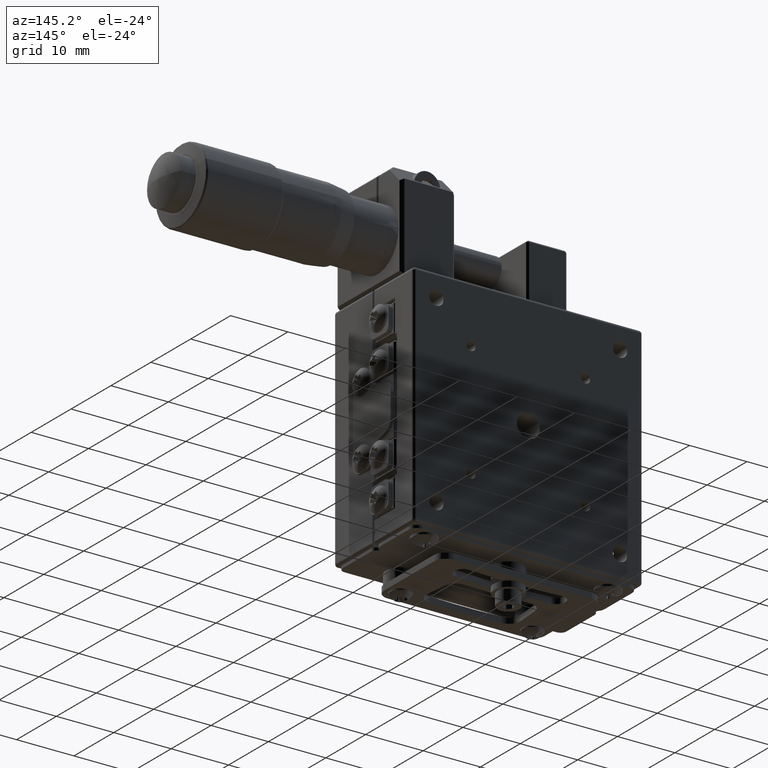
[diagram: clean part render]
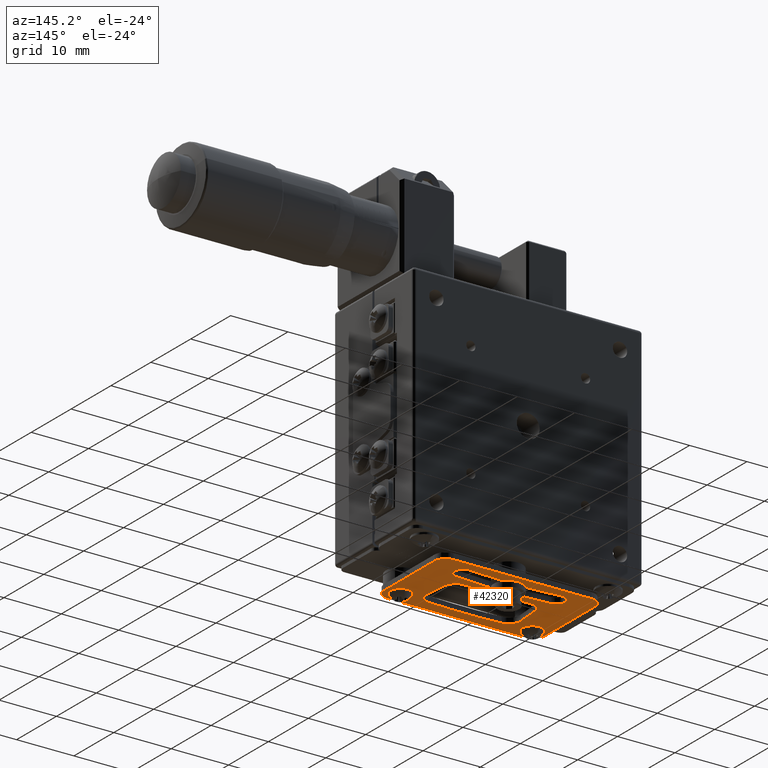
[diagram: same view with one face highlighted and labeled with its STEP entity id]
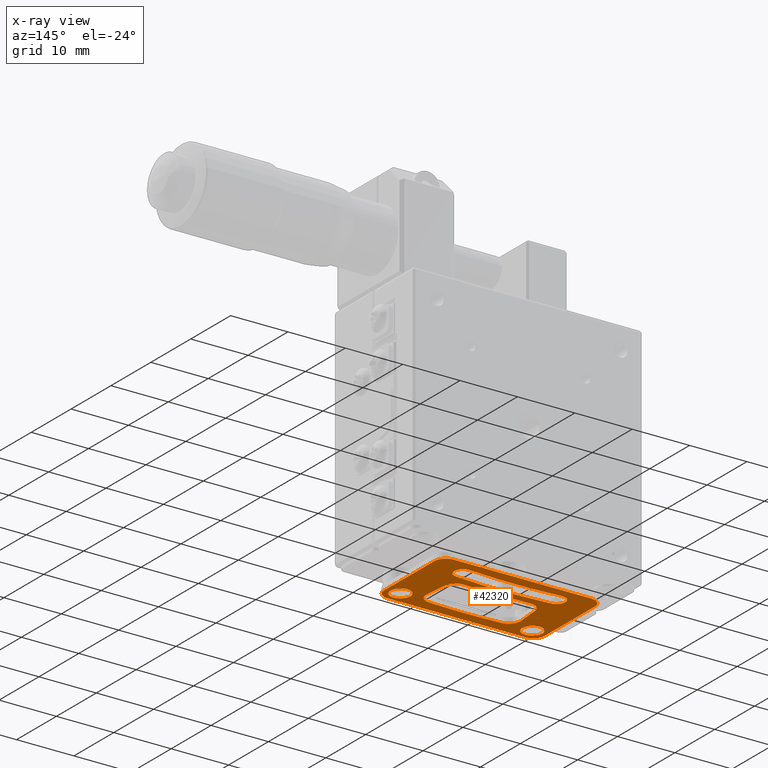
[diagram: x-ray of the same camera — body ghosted, the highlighted face saturated]
A machine part, auxiliary view. The second image highlights one B-rep face of the part: STEP entity #42320.
The next image is the same camera in x-ray: the body ghosted, the highlighted face saturated — about 0% of this face is hidden behind the body in this view.
In plain terms, the highlighted planar face has unit normal (0, 0, -1).
Its self-contained STEP definition (entity closure, byte-faithful):
#257 = VERTEX_POINT ( 'NONE', #2765 ) ;
#264 = CARTESIAN_POINT ( 'NONE',  ( -12.75129990782597922, 6.082277912659169949, -23.50000000000000000 ) ) ;
#445 = CIRCLE ( 'NONE', #35390, 1.750000000000001554 ) ;
#469 = VECTOR ( 'NONE', #14109, 1000.000000000000000 ) ;
#511 = AXIS2_PLACEMENT_3D ( 'NONE', #7976, #3271, #29835 ) ;
#567 = EDGE_CURVE ( 'NONE', #38272, #35162, #10522, .T. ) ;
#590 = EDGE_CURVE ( 'NONE', #34601, #27998, #39010, .T. ) ;
#622 = CIRCLE ( 'NONE', #3009, 2.000000000000000000 ) ;
#766 = ORIENTED_EDGE ( 'NONE', *, *, #21086, .F. ) ;
#908 = DIRECTION ( 'NONE',  ( 0.000000000000000000, 0.000000000000000000, 1.000000000000000000 ) ) ;
#1371 = CIRCLE ( 'NONE', #6952, 2.000000000000000000 ) ;
#1542 = DIRECTION ( 'NONE',  ( -1.648092493246315104E-30, 1.965541369730930102E-30, -1.000000000000000000 ) ) ;
#2049 = CIRCLE ( 'NONE', #43293, 1.750000000000001554 ) ;
#2614 = CARTESIAN_POINT ( 'NONE',  ( -15.10441094360695047, 9.290954773869358974, -23.50000000000000000 ) ) ;
#2765 = CARTESIAN_POINT ( 'NONE',  ( 8.895589056393079730, -7.309045226130649553, -23.50000000000000000 ) ) ;
#3009 = AXIS2_PLACEMENT_3D ( 'NONE', #16290, #4116, #19279 ) ;
#3240 = CARTESIAN_POINT ( 'NONE',  ( -3.104410943606929596, 90.69095477386940729, -23.50000000000000000 ) ) ;
#3271 = DIRECTION ( 'NONE',  ( 0.000000000000000000, 0.000000000000000000, 1.000000000000000000 ) ) ;
#3462 = CARTESIAN_POINT ( 'NONE',  ( -15.10441094360695047, -5.309045226130649553, -23.50000000000000000 ) ) ;
#3878 = EDGE_CURVE ( 'NONE', #37257, #40871, #23510, .T. ) ;
#3894 = EDGE_LOOP ( 'NONE', ( #8462, #16929, #42302, #17318, #41115, #19037, #31788, #42675, #46738 ) ) ;
#3938 = EDGE_CURVE ( 'NONE', #25240, #10435, #27495, .T. ) ;
#4116 = DIRECTION ( 'NONE',  ( 0.000000000000000000, 0.000000000000000000, 1.000000000000000000 ) ) ;
#4225 = ORIENTED_EDGE ( 'NONE', *, *, #30818, .T. ) ;
#4283 = LINE ( 'NONE', #23400, #43187 ) ;
#4367 = DIRECTION ( 'NONE',  ( 0.000000000000000000, 0.000000000000000000, -1.000000000000000000 ) ) ;
#4453 = ORIENTED_EDGE ( 'NONE', *, *, #19870, .F. ) ;
#4691 = DIRECTION ( 'NONE',  ( 1.000000000000000000, 0.000000000000000000, 0.000000000000000000 ) ) ;
#4694 = CARTESIAN_POINT ( 'NONE',  ( 5.186246649392450614, 4.589183615108390235, -23.50000000000000000 ) ) ;
#4833 = DIRECTION ( 'NONE',  ( 1.000000000000000000, 0.000000000000000000, 0.000000000000000000 ) ) ;
#4981 = CARTESIAN_POINT ( 'NONE',  ( -15.10441094360695047, 9.290954773869358974, -23.50000000000000000 ) ) ;
#5511 = CIRCLE ( 'NONE', #11850, 1.750000000000000444 ) ;
#5530 = CARTESIAN_POINT ( 'NONE',  ( 4.898709391831780557, 7.575372210209920354, -23.50000000000000000 ) ) ;
#6265 = EDGE_CURVE ( 'NONE', #40871, #15358, #41982, .T. ) ;
#6425 = VERTEX_POINT ( 'NONE', #32288 ) ;
#6428 = CARTESIAN_POINT ( 'NONE',  ( -10.94649075744341893, 1.055572339289323924, -23.50000000000000000 ) ) ;
#6671 = DIRECTION ( 'NONE',  ( 0.000000000000000000, 0.000000000000000000, 1.000000000000000000 ) ) ;
#6877 = AXIS2_PLACEMENT_3D ( 'NONE', #36052, #13705, #20901 ) ;
#6952 = AXIS2_PLACEMENT_3D ( 'NONE', #20044, #908, #46112 ) ;
#6977 = CARTESIAN_POINT ( 'NONE',  ( -11.25129990782597922, 6.082277912659169949, -23.50000000000000000 ) ) ;
#7637 = CARTESIAN_POINT ( 'NONE',  ( 10.89558905639307973, 7.290954773869350092, -23.50000000000000000 ) ) ;
#7641 = VERTEX_POINT ( 'NONE', #29544 ) ;
#7976 = CARTESIAN_POINT ( 'NONE',  ( -3.104410943606929596, 90.69095477386940729, -23.50000000000000000 ) ) ;
#8139 = VECTOR ( 'NONE', #42979, 1000.000000000000000 ) ;
#8203 = CARTESIAN_POINT ( 'NONE',  ( 4.737668870229560625, 1.055572339289323924, -23.50000000000000000 ) ) ;
#8366 = DIRECTION ( 'NONE',  ( 0.000000000000000000, -1.000000000000000000, 0.000000000000000000 ) ) ;
#8462 = ORIENTED_EDGE ( 'NONE', *, *, #32282, .T. ) ;
#8476 = DIRECTION ( 'NONE',  ( 0.000000000000000000, 0.000000000000000000, -1.000000000000000000 ) ) ;
#8715 = CARTESIAN_POINT ( 'NONE',  ( -3.104410943606929596, 90.69095477386940729, -23.50000000000000000 ) ) ;
#9081 = CIRCLE ( 'NONE', #47156, 1.499999999999999556 ) ;
#9175 = ORIENTED_EDGE ( 'NONE', *, *, #25261, .F. ) ;
#9292 = VERTEX_POINT ( 'NONE', #264 ) ;
#9331 = CARTESIAN_POINT ( 'NONE',  ( -9.434687540724301158, -5.100107430304968936, -23.50000000000000000 ) ) ;
#10435 = VERTEX_POINT ( 'NONE', #21007 ) ;
#10521 = DIRECTION ( 'NONE',  ( -0.08715574274765813811, -0.9961946980917455452, 0.000000000000000000 ) ) ;
#10522 = CIRCLE ( 'NONE', #39878, 86.50000000000000000 ) ;
#10622 = LINE ( 'NONE', #22511, #469 ) ;
#11191 = VERTEX_POINT ( 'NONE', #6428 ) ;
#11464 = CARTESIAN_POINT ( 'NONE',  ( 5.086374287253989657, -2.930148815555989827, -23.50000000000000000 ) ) ;
#11850 = AXIS2_PLACEMENT_3D ( 'NONE', #16936, #32321, #20652 ) ;
#12099 = FACE_OUTER_BOUND ( 'NONE', #34866, .T. ) ;
#12137 = ORIENTED_EDGE ( 'NONE', *, *, #43408, .F. ) ;
#12291 = DIRECTION ( 'NONE',  ( 0.000000000000000000, 0.000000000000000000, 1.000000000000000000 ) ) ;
#13229 = ORIENTED_EDGE ( 'NONE', *, *, #42219, .F. ) ;
#13294 = CARTESIAN_POINT ( 'NONE',  ( 3.225865653510445075, -5.100107430304968936, -23.50000000000000000 ) ) ;
#13574 = VECTOR ( 'NONE', #10521, 1000.000000000000114 ) ;
#13705 = DIRECTION ( 'NONE',  ( 0.000000000000000000, 0.000000000000000000, 1.000000000000000000 ) ) ;
#13795 = CARTESIAN_POINT ( 'NONE',  ( -11.25129990782597922, 6.082277912659169949, -23.50000000000000000 ) ) ;
#14109 = DIRECTION ( 'NONE',  ( 2.753529326947314899E-16, 1.000000000000000000, 0.000000000000000000 ) ) ;
#14337 = AXIS2_PLACEMENT_3D ( 'NONE', #3462, #31262, #4691 ) ;
#14617 = EDGE_CURVE ( 'NONE', #43396, #39469, #445, .T. ) ;
#14781 = EDGE_LOOP ( 'NONE', ( #16804, #9175 ) ) ;
#14889 = CARTESIAN_POINT ( 'NONE',  ( -17.10441094360695047, 7.290954773869350092, -23.50000000000000000 ) ) ;
#15105 = AXIS2_PLACEMENT_3D ( 'NONE', #13795, #33388, #32900 ) ;
#15182 = CARTESIAN_POINT ( 'NONE',  ( 4.565294418186979897, 3.025821341795745134, -23.50000000000000000 ) ) ;
#15323 = FACE_BOUND ( 'NONE', #15832, .T. ) ;
#15358 = VERTEX_POINT ( 'NONE', #8203 ) ;
#15816 = CARTESIAN_POINT ( 'NONE',  ( 7.054610742970379711, -5.933446027860200367, -23.50000000000000000 ) ) ;
#15832 = EDGE_LOOP ( 'NONE', ( #20007, #30350, #31202, #4225, #21781 ) ) ;
#16060 = CARTESIAN_POINT ( 'NONE',  ( -3.104410943606929596, 90.69095477386940729, -23.50000000000000000 ) ) ;
#16065 = CARTESIAN_POINT ( 'NONE',  ( 8.895589056393069072, 7.290954773869350092, -23.50000000000000000 ) ) ;
#16290 = CARTESIAN_POINT ( 'NONE',  ( -9.302806778284359979, -3.104460301051310100, -23.50000000000000000 ) ) ;
#16804 = ORIENTED_EDGE ( 'NONE', *, *, #29837, .F. ) ;
#16929 = ORIENTED_EDGE ( 'NONE', *, *, #47253, .T. ) ;
#16936 = CARTESIAN_POINT ( 'NONE',  ( 8.395589056393070848, -4.809045226130649553, -23.50000000000000000 ) ) ;
#17167 = DIRECTION ( 'NONE',  ( -1.000000000000000000, -8.673617379884035472E-16, 0.000000000000000000 ) ) ;
#17301 = LINE ( 'NONE', #32442, #13574 ) ;
#17318 = ORIENTED_EDGE ( 'NONE', *, *, #35318, .T. ) ;
#17418 = CARTESIAN_POINT ( 'NONE',  ( -11.29519617446783997, -2.930148815555989827, -23.50000000000000000 ) ) ;
#17723 = CARTESIAN_POINT ( 'NONE',  ( 8.895589056393069072, 9.290954773869358974, -23.50000000000000000 ) ) ;
#17871 = DIRECTION ( 'NONE',  ( -1.000000000000000000, 0.000000000000000000, 0.000000000000000000 ) ) ;
#17892 = CARTESIAN_POINT ( 'NONE',  ( 2.745279474046065094, 0.8812608537940029851, -23.50000000000000000 ) ) ;
#18967 = CARTESIAN_POINT ( 'NONE',  ( -12.85441094360692027, -4.809045226130649553, -23.50000000000000000 ) ) ;
#19037 = ORIENTED_EDGE ( 'NONE', *, *, #27042, .T. ) ;
#19279 = DIRECTION ( 'NONE',  ( -1.000000000000000000, 0.000000000000000000, 0.000000000000000000 ) ) ;
#19290 = ORIENTED_EDGE ( 'NONE', *, *, #35981, .F. ) ;
#19870 = EDGE_CURVE ( 'NONE', #42807, #6425, #22341, .T. ) ;
#19922 = CIRCLE ( 'NONE', #26258, 2.000000000000000000 ) ;
#20007 = ORIENTED_EDGE ( 'NONE', *, *, #567, .T. ) ;
#20044 = CARTESIAN_POINT ( 'NONE',  ( 8.895589056393079730, -5.309045226130649553, -23.50000000000000000 ) ) ;
#20131 = AXIS2_PLACEMENT_3D ( 'NONE', #31151, #12291, #4833 ) ;
#20652 = DIRECTION ( 'NONE',  ( 0.7662733219558227615, 0.6425147438454529292, 0.000000000000000000 ) ) ;
#20877 = CIRCLE ( 'NONE', #27203, 2.000000000000000000 ) ;
#20901 = DIRECTION ( 'NONE',  ( -1.000000000000000000, 8.673617379884035472E-16, 0.000000000000000000 ) ) ;
#20934 = VERTEX_POINT ( 'NONE', #17418 ) ;
#21007 = CARTESIAN_POINT ( 'NONE',  ( -11.10753127904563975, 7.575372210209930124, -23.50000000000000000 ) ) ;
#21053 = VERTEX_POINT ( 'NONE', #29558 ) ;
#21086 = EDGE_CURVE ( 'NONE', #6425, #22586, #30983, .T. ) ;
#21468 = CARTESIAN_POINT ( 'NONE',  ( -8.954101361259928282, 0.8812608537940029851, -23.50000000000000000 ) ) ;
#21721 = EDGE_CURVE ( 'NONE', #11191, #20934, #17301, .T. ) ;
#21781 = ORIENTED_EDGE ( 'NONE', *, *, #36029, .T. ) ;
#22337 = ORIENTED_EDGE ( 'NONE', *, *, #48955, .F. ) ;
#22341 = LINE ( 'NONE', #14889, #44363 ) ;
#22357 = DIRECTION ( 'NONE',  ( 0.000000000000000000, 0.000000000000000000, -1.000000000000000000 ) ) ;
#22396 = EDGE_CURVE ( 'NONE', #35162, #25240, #23782, .T. ) ;
#22483 = VERTEX_POINT ( 'NONE', #7637 ) ;
#22511 = CARTESIAN_POINT ( 'NONE',  ( 10.89558905639307973, 7.290954773869350092, -23.50000000000000000 ) ) ;
#22586 = VERTEX_POINT ( 'NONE', #42638 ) ;
#22750 = FACE_BOUND ( 'NONE', #23976, .T. ) ;
#23111 = DIRECTION ( 'NONE',  ( -1.000000000000000000, 0.000000000000000000, 0.000000000000000000 ) ) ;
#23298 = ORIENTED_EDGE ( 'NONE', *, *, #40582, .F. ) ;
#23400 = CARTESIAN_POINT ( 'NONE',  ( -15.10441094360695047, -7.309045226130649553, -23.50000000000000000 ) ) ;
#23510 = CIRCLE ( 'NONE', #6877, 2.000000000000000000 ) ;
#23782 = CIRCLE ( 'NONE', #47703, 1.500000000000000000 ) ;
#23847 = DIRECTION ( 'NONE',  ( 1.000000000000000000, 0.000000000000000000, 0.000000000000000000 ) ) ;
#23976 = EDGE_LOOP ( 'NONE', ( #24660, #26652 ) ) ;
#24660 = ORIENTED_EDGE ( 'NONE', *, *, #14617, .F. ) ;
#24674 = AXIS2_PLACEMENT_3D ( 'NONE', #17892, #29307, #17167 ) ;
#25240 = VERTEX_POINT ( 'NONE', #5530 ) ;
#25261 = EDGE_CURVE ( 'NONE', #33484, #7641, #27170, .T. ) ;
#25771 = DIRECTION ( 'NONE',  ( 0.000000000000000000, 0.000000000000000000, 1.000000000000000000 ) ) ;
#26258 = AXIS2_PLACEMENT_3D ( 'NONE', #48428, #47691, #17871 ) ;
#26652 = ORIENTED_EDGE ( 'NONE', *, *, #41646, .F. ) ;
#26727 = CARTESIAN_POINT ( 'NONE',  ( -16.35441094360695402, -4.809045226130649553, -23.50000000000000000 ) ) ;
#26887 = EDGE_CURVE ( 'NONE', #30303, #39276, #622, .T. ) ;
#27042 = EDGE_CURVE ( 'NONE', #39276, #37257, #28410, .T. ) ;
#27087 = CARTESIAN_POINT ( 'NONE',  ( -14.60441094360692027, -4.809045226130649553, -23.50000000000000000 ) ) ;
#27170 = CIRCLE ( 'NONE', #36701, 1.750000000000000444 ) ;
#27203 = AXIS2_PLACEMENT_3D ( 'NONE', #47906, #25771, #48151 ) ;
#27219 = PLANE ( 'NONE',  #29841 ) ;
#27495 = CIRCLE ( 'NONE', #38584, 83.50000000000000000 ) ;
#27719 = DIRECTION ( 'NONE',  ( 1.000000000000000000, 0.000000000000000000, 0.000000000000000000 ) ) ;
#27998 = VERTEX_POINT ( 'NONE', #2614 ) ;
#28410 = CIRCLE ( 'NONE', #511, 96.00000000000000000 ) ;
#29276 = DIRECTION ( 'NONE',  ( 0.000000000000000000, 0.000000000000000000, -1.000000000000000000 ) ) ;
#29307 = DIRECTION ( 'NONE',  ( 0.000000000000000000, 0.000000000000000000, 1.000000000000000000 ) ) ;
#29409 = DIRECTION ( 'NONE',  ( -1.000000000000000000, 8.673617379884035472E-16, 0.000000000000000000 ) ) ;
#29498 = CIRCLE ( 'NONE', #32663, 88.00000000000000000 ) ;
#29544 = CARTESIAN_POINT ( 'NONE',  ( 9.736567369815769979, -3.684644424401110285, -23.50000000000000000 ) ) ;
#29558 = CARTESIAN_POINT ( 'NONE',  ( 2.615286353653775375, 2.877031829795679840, -23.50000000000000000 ) ) ;
#29835 = DIRECTION ( 'NONE',  ( 1.000000000000000000, 0.000000000000000000, 0.000000000000000000 ) ) ;
#29837 = EDGE_CURVE ( 'NONE', #7641, #33484, #5511, .T. ) ;
#29841 = AXIS2_PLACEMENT_3D ( 'NONE', #16065, #4367, #8366 ) ;
#30303 = VERTEX_POINT ( 'NONE', #38504 ) ;
#30350 = ORIENTED_EDGE ( 'NONE', *, *, #22396, .T. ) ;
#30818 = EDGE_CURVE ( 'NONE', #10435, #9292, #34914, .T. ) ;
#30946 = DIRECTION ( 'NONE',  ( 0.000000000000000000, 0.000000000000000000, -1.000000000000000000 ) ) ;
#30983 = CIRCLE ( 'NONE', #14337, 2.000000000000000000 ) ;
#31151 = CARTESIAN_POINT ( 'NONE',  ( -15.10441094360695047, 7.290954773869350092, -23.50000000000000000 ) ) ;
#31202 = ORIENTED_EDGE ( 'NONE', *, *, #3938, .T. ) ;
#31262 = DIRECTION ( 'NONE',  ( 0.000000000000000000, 0.000000000000000000, 1.000000000000000000 ) ) ;
#31722 = CIRCLE ( 'NONE', #34092, 2.000000000000000000 ) ;
#31788 = ORIENTED_EDGE ( 'NONE', *, *, #3878, .T. ) ;
#32282 = EDGE_CURVE ( 'NONE', #21053, #32873, #29498, .T. ) ;
#32288 = CARTESIAN_POINT ( 'NONE',  ( -17.10441094360689718, -5.309045226130649553, -23.50000000000000000 ) ) ;
#32321 = DIRECTION ( 'NONE',  ( -1.648092493246315104E-30, 1.965541369730930102E-30, -1.000000000000000000 ) ) ;
#32442 = CARTESIAN_POINT ( 'NONE',  ( -10.77411630540083998, 3.025821341795745134, -23.50000000000000000 ) ) ;
#32505 = DIRECTION ( 'NONE',  ( -1.000000000000000000, 0.000000000000000000, 0.000000000000000000 ) ) ;
#32663 = AXIS2_PLACEMENT_3D ( 'NONE', #16060, #30946, #27719 ) ;
#32781 = EDGE_CURVE ( 'NONE', #15358, #21053, #34207, .T. ) ;
#32873 = VERTEX_POINT ( 'NONE', #47950 ) ;
#32886 = DIRECTION ( 'NONE',  ( 0.000000000000000000, 0.000000000000000000, 1.000000000000000000 ) ) ;
#32900 = DIRECTION ( 'NONE',  ( 1.000000000000000000, 0.000000000000000000, 0.000000000000000000 ) ) ;
#33273 = DIRECTION ( 'NONE',  ( 5.507058653894629797E-16, -1.000000000000000000, 0.000000000000000000 ) ) ;
#33388 = DIRECTION ( 'NONE',  ( 0.000000000000000000, 0.000000000000000000, 1.000000000000000000 ) ) ;
#33484 = VERTEX_POINT ( 'NONE', #15816 ) ;
#33538 = DIRECTION ( 'NONE',  ( 1.000000000000000000, 0.000000000000000000, 0.000000000000000000 ) ) ;
#33922 = CARTESIAN_POINT ( 'NONE',  ( 10.89558905639307973, -5.309045226130649553, -23.50000000000000000 ) ) ;
#34092 = AXIS2_PLACEMENT_3D ( 'NONE', #21468, #32886, #29409 ) ;
#34207 = CIRCLE ( 'NONE', #24674, 2.000000000000000000 ) ;
#34601 = VERTEX_POINT ( 'NONE', #17723 ) ;
#34866 = EDGE_LOOP ( 'NONE', ( #22337, #13229, #12137, #23298, #766, #4453, #19290, #39281 ) ) ;
#34914 = CIRCLE ( 'NONE', #15105, 1.499999999999999556 ) ;
#35162 = VERTEX_POINT ( 'NONE', #4694 ) ;
#35195 = CIRCLE ( 'NONE', #20131, 2.000000000000000000 ) ;
#35318 = EDGE_CURVE ( 'NONE', #20934, #30303, #20877, .T. ) ;
#35390 = AXIS2_PLACEMENT_3D ( 'NONE', #47681, #29276, #36736 ) ;
#35981 = EDGE_CURVE ( 'NONE', #27998, #42807, #35195, .T. ) ;
#36029 = EDGE_CURVE ( 'NONE', #9292, #38272, #9081, .T. ) ;
#36052 = CARTESIAN_POINT ( 'NONE',  ( 3.093984891070495014, -3.104460301051310100, -23.50000000000000000 ) ) ;
#36295 = VECTOR ( 'NONE', #38260, 999.9999999999998863 ) ;
#36701 = AXIS2_PLACEMENT_3D ( 'NONE', #39802, #1542, #47505 ) ;
#36736 = DIRECTION ( 'NONE',  ( -1.000000000000000000, 0.000000000000000000, 0.000000000000000000 ) ) ;
#36784 = DIRECTION ( 'NONE',  ( 0.000000000000000000, 0.000000000000000000, 1.000000000000000000 ) ) ;
#37257 = VERTEX_POINT ( 'NONE', #13294 ) ;
#38260 = DIRECTION ( 'NONE',  ( -0.08715574274766151042, 0.9961946980917453232, 0.000000000000000000 ) ) ;
#38272 = VERTEX_POINT ( 'NONE', #41319 ) ;
#38504 = CARTESIAN_POINT ( 'NONE',  ( -11.30280677828435998, -3.104460301051310100, -23.50000000000000000 ) ) ;
#38566 = DIRECTION ( 'NONE',  ( 1.000000000000000000, 0.000000000000000000, 0.000000000000000000 ) ) ;
#38584 = AXIS2_PLACEMENT_3D ( 'NONE', #3240, #22357, #33538 ) ;
#39010 = LINE ( 'NONE', #4981, #8139 ) ;
#39148 = VERTEX_POINT ( 'NONE', #33922 ) ;
#39276 = VERTEX_POINT ( 'NONE', #9331 ) ;
#39281 = ORIENTED_EDGE ( 'NONE', *, *, #590, .F. ) ;
#39469 = VERTEX_POINT ( 'NONE', #18967 ) ;
#39802 = CARTESIAN_POINT ( 'NONE',  ( 8.395589056393070848, -4.809045226130649553, -23.50000000000000000 ) ) ;
#39878 = AXIS2_PLACEMENT_3D ( 'NONE', #8715, #42724, #23847 ) ;
#40582 = EDGE_CURVE ( 'NONE', #22586, #257, #4283, .T. ) ;
#40871 = VERTEX_POINT ( 'NONE', #11464 ) ;
#41115 = ORIENTED_EDGE ( 'NONE', *, *, #26887, .T. ) ;
#41319 = CARTESIAN_POINT ( 'NONE',  ( -11.39506853660634000, 4.589183615108390235, -23.50000000000000000 ) ) ;
#41646 = EDGE_CURVE ( 'NONE', #39469, #43396, #2049, .T. ) ;
#41982 = LINE ( 'NONE', #15182, #36295 ) ;
#42219 = EDGE_CURVE ( 'NONE', #39148, #22483, #10622, .T. ) ;
#42302 = ORIENTED_EDGE ( 'NONE', *, *, #21721, .T. ) ;
#42310 = CARTESIAN_POINT ( 'NONE',  ( -17.10441094360695047, 7.290954773869350092, -23.50000000000000000 ) ) ;
#42320 = ADVANCED_FACE ( 'NONE', ( #22750, #46605, #15323, #42371, #12099 ), #27219, .T. ) ;
#42371 = FACE_BOUND ( 'NONE', #14781, .T. ) ;
#42638 = CARTESIAN_POINT ( 'NONE',  ( -15.10441094360695047, -7.309045226130649553, -23.50000000000000000 ) ) ;
#42675 = ORIENTED_EDGE ( 'NONE', *, *, #6265, .T. ) ;
#42724 = DIRECTION ( 'NONE',  ( 0.000000000000000000, 0.000000000000000000, 1.000000000000000000 ) ) ;
#42807 = VERTEX_POINT ( 'NONE', #42310 ) ;
#42979 = DIRECTION ( 'NONE',  ( -1.000000000000000000, 0.000000000000000000, 0.000000000000000000 ) ) ;
#43187 = VECTOR ( 'NONE', #38566, 1000.000000000000000 ) ;
#43293 = AXIS2_PLACEMENT_3D ( 'NONE', #27087, #8476, #23111 ) ;
#43396 = VERTEX_POINT ( 'NONE', #26727 ) ;
#43408 = EDGE_CURVE ( 'NONE', #257, #39148, #1371, .T. ) ;
#43928 = CARTESIAN_POINT ( 'NONE',  ( 5.042478020612120027, 6.082277912659169949, -23.50000000000000000 ) ) ;
#43986 = DIRECTION ( 'NONE',  ( 1.000000000000000000, 0.000000000000000000, 0.000000000000000000 ) ) ;
#44363 = VECTOR ( 'NONE', #33273, 1000.000000000000000 ) ;
#46112 = DIRECTION ( 'NONE',  ( 1.000000000000000000, 0.000000000000000000, 0.000000000000000000 ) ) ;
#46605 = FACE_BOUND ( 'NONE', #3894, .T. ) ;
#46738 = ORIENTED_EDGE ( 'NONE', *, *, #32781, .T. ) ;
#47156 = AXIS2_PLACEMENT_3D ( 'NONE', #6977, #36784, #43986 ) ;
#47253 = EDGE_CURVE ( 'NONE', #32873, #11191, #31722, .T. ) ;
#47505 = DIRECTION ( 'NONE',  ( 0.7662733219558227615, 0.6425147438454529292, 0.000000000000000000 ) ) ;
#47681 = CARTESIAN_POINT ( 'NONE',  ( -14.60441094360692027, -4.809045226130649553, -23.50000000000000000 ) ) ;
#47691 = DIRECTION ( 'NONE',  ( 0.000000000000000000, 0.000000000000000000, 1.000000000000000000 ) ) ;
#47703 = AXIS2_PLACEMENT_3D ( 'NONE', #43928, #6671, #32505 ) ;
#47906 = CARTESIAN_POINT ( 'NONE',  ( -9.302806778284359979, -3.104460301051310100, -23.50000000000000000 ) ) ;
#47950 = CARTESIAN_POINT ( 'NONE',  ( -8.824108240867650110, 2.877031829795679840, -23.50000000000000000 ) ) ;
#48151 = DIRECTION ( 'NONE',  ( -1.000000000000000000, -1.951563910473907981E-14, 0.000000000000000000 ) ) ;
#48428 = CARTESIAN_POINT ( 'NONE',  ( 8.895589056393069072, 7.290954773869350092, -23.50000000000000000 ) ) ;
#48955 = EDGE_CURVE ( 'NONE', #22483, #34601, #19922, .T. ) ;